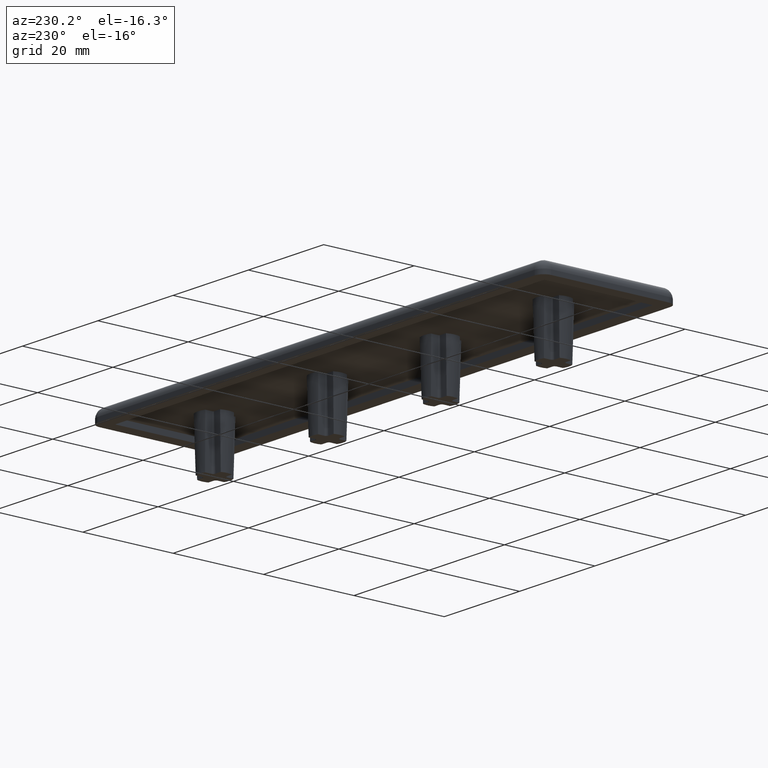
[diagram: clean part render]
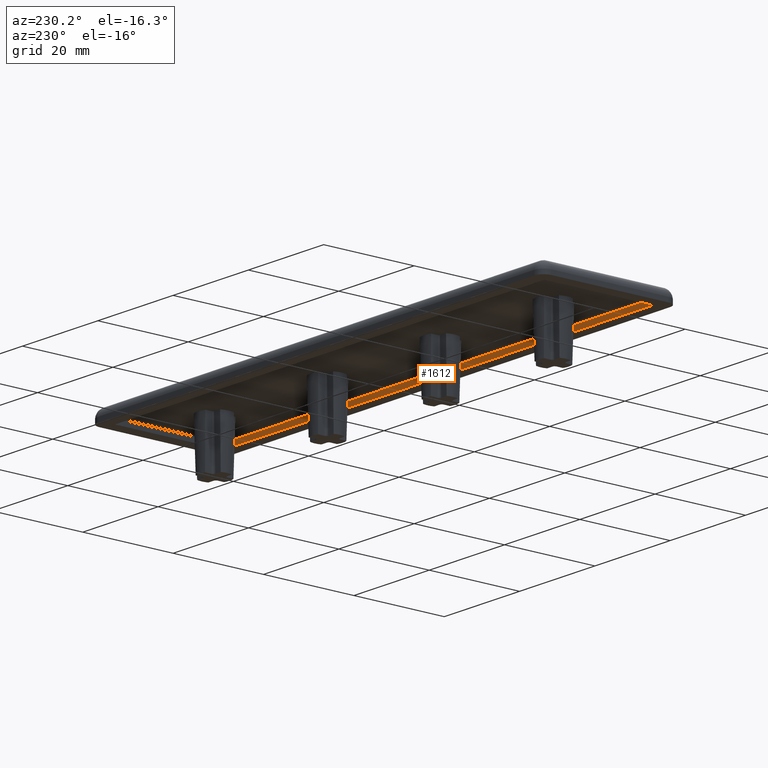
[diagram: same view with one face highlighted and labeled with its STEP entity id]
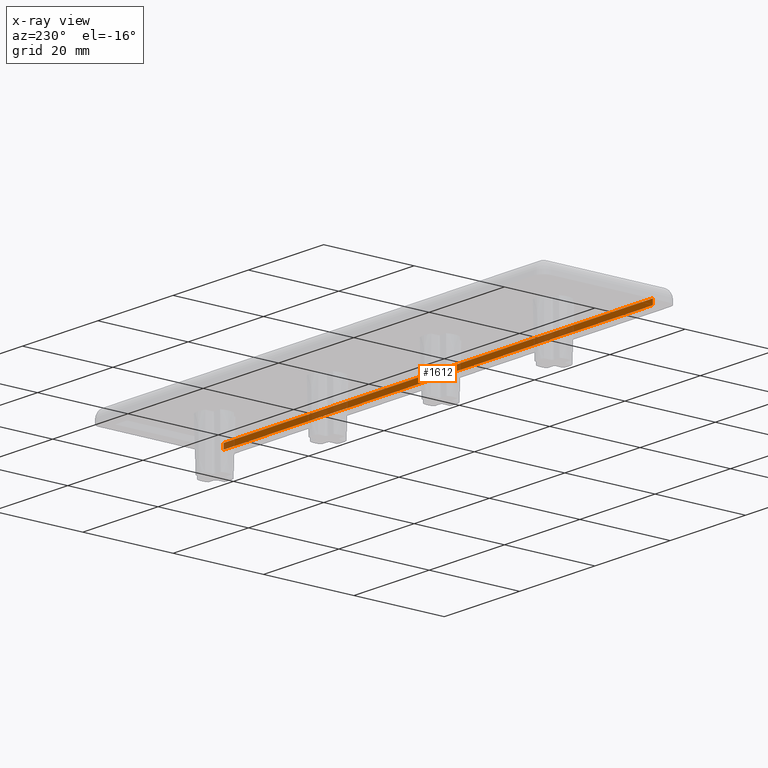
[diagram: x-ray of the same camera — body ghosted, the highlighted face saturated]
A machine part, auxiliary view. The second image highlights one B-rep face of the part: STEP entity #1612.
The next image is the same camera in x-ray: the body ghosted, the highlighted face saturated — about 30% of this face is hidden behind the body in this view.
In plain terms, the highlighted planar face has unit normal (-0, -1, 0).
Its self-contained STEP definition (entity closure, byte-faithful):
#102=PLANE('',#1769);
#181=FACE_OUTER_BOUND('',#272,.T.);
#272=EDGE_LOOP('',(#1358,#1359,#1360,#1361));
#399=LINE('',#2745,#527);
#402=LINE('',#2751,#530);
#403=LINE('',#2753,#531);
#404=LINE('',#2754,#532);
#527=VECTOR('',#2177,1.2);
#530=VECTOR('',#2182,114.);
#531=VECTOR('',#2183,1.2);
#532=VECTOR('',#2184,114.);
#766=VERTEX_POINT('',#2741);
#768=VERTEX_POINT('',#2744);
#770=VERTEX_POINT('',#2750);
#771=VERTEX_POINT('',#2752);
#987=EDGE_CURVE('',#766,#768,#399,.T.);
#990=EDGE_CURVE('',#770,#766,#402,.T.);
#991=EDGE_CURVE('',#770,#771,#403,.T.);
#992=EDGE_CURVE('',#771,#768,#404,.T.);
#1358=ORIENTED_EDGE('',*,*,#990,.F.);
#1359=ORIENTED_EDGE('',*,*,#991,.T.);
#1360=ORIENTED_EDGE('',*,*,#992,.T.);
#1361=ORIENTED_EDGE('',*,*,#987,.F.);
#1612=ADVANCED_FACE('',(#181),#102,.F.);
#1769=AXIS2_PLACEMENT_3D('',#2749,#2180,#2181);
#2177=DIRECTION('',(0.,0.,1.));
#2180=DIRECTION('center_axis',(-2.53208760002229E-16,-1.,0.));
#2181=DIRECTION('ref_axis',(1.,-1.77635683940025E-16,0.));
#2182=DIRECTION('',(1.,-2.53208760002229E-16,0.));
#2183=DIRECTION('',(0.,0.,1.));
#2184=DIRECTION('',(1.,-2.53208760002229E-16,0.));
#2741=CARTESIAN_POINT('',(57.,-12.,0.));
#2744=CARTESIAN_POINT('',(57.,-12.,1.2));
#2745=CARTESIAN_POINT('',(57.,-12.,0.));
#2749=CARTESIAN_POINT('Origin',(-57.,-12.,0.));
#2750=CARTESIAN_POINT('',(-57.,-12.,0.));
#2751=CARTESIAN_POINT('',(-28.5,-12.,0.));
#2752=CARTESIAN_POINT('',(-57.,-12.,1.2));
#2753=CARTESIAN_POINT('',(-57.,-12.,0.));
#2754=CARTESIAN_POINT('',(57.,-12.,1.2));